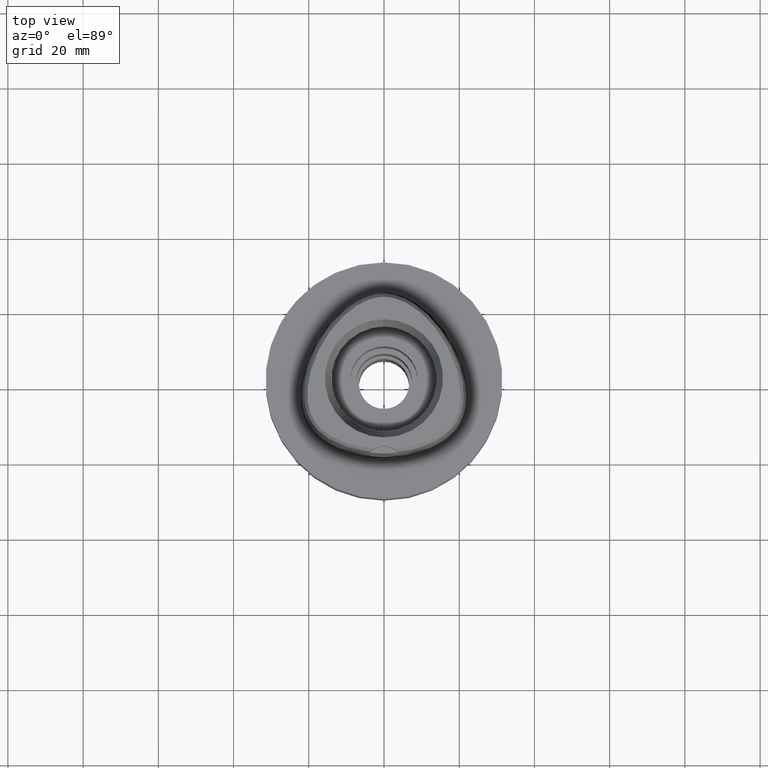
[diagram: clean part render]
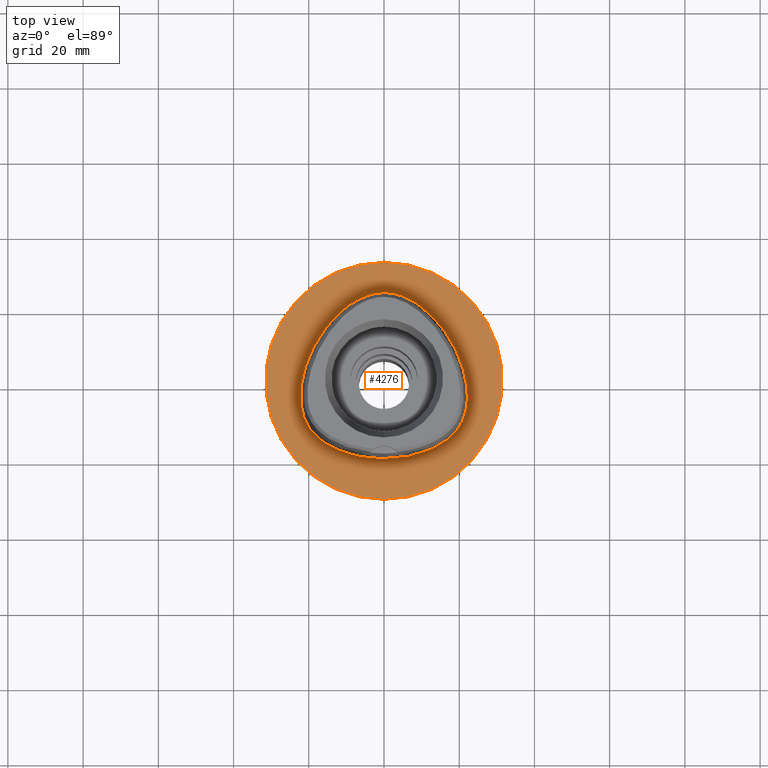
[diagram: same view with one face highlighted and labeled with its STEP entity id]
A machine part, top view. The second image highlights one B-rep face of the part: STEP entity #4276.
In plain terms, the highlighted planar face has unit normal (0, 0, -1).
Its self-contained STEP definition (entity closure, byte-faithful):
#206 = CARTESIAN_POINT ( 'NONE',  ( -14.40795638669283107, 15.64093749755124740, 1.504619045729436305E-07 ) ) ;
#239 = CARTESIAN_POINT ( 'NONE',  ( 19.64947370050258613, -12.82525393668216651, -2.066734200662292964E-06 ) ) ;
#254 = CARTESIAN_POINT ( 'NONE',  ( -6.341471018543137106, -20.29812499627781719, 1.504619045729436305E-07 ) ) ;
#279 = CARTESIAN_POINT ( 'NONE',  ( -14.67337964233091263, -17.21410155921854823, 1.504619045729436305E-07 ) ) ;
#289 = CARTESIAN_POINT ( 'NONE',  ( 0.0000000000000000000, -31.50000000000000000, 1.243449787579999883E-14 ) ) ;
#509 = DIRECTION ( 'NONE',  ( 0.0000000000000000000, -1.000000000000000000, 0.0000000000000000000 ) ) ;
#573 = CARTESIAN_POINT ( 'NONE',  ( 4.563156939745000540E-11, 23.47499999999000053, 5.514107688971999147E-14 ) ) ;
#619 = CARTESIAN_POINT ( 'NONE',  ( -21.55524825647565024, -8.996025389549746620, 1.504619045729436305E-07 ) ) ;
#626 = CARTESIAN_POINT ( 'NONE',  ( 16.95889175801266191, -15.67838871266147649, -2.066734200662292964E-06 ) ) ;
#647 = CARTESIAN_POINT ( 'NONE',  ( -10.74572890816407700, 19.17433593460787122, 1.504619045729436305E-07 ) ) ;
#672 = CARTESIAN_POINT ( 'NONE',  ( -21.97832647413867235, -0.2810937506581301926, 1.504619045729436305E-07 ) ) ;
#765 = CARTESIAN_POINT ( 'NONE',  ( 0.0000000000000000000, 1.300574900694000041E-14, 1.243449787579999883E-14 ) ) ;
#792 = CIRCLE ( 'NONE', #1452, 31.50000000000000000 ) ;
#804 = B_SPLINE_CURVE_WITH_KNOTS ( 'NONE', 3,
 ( #573, #4146, #3748, #1422, #2131, #647, #206, #2154, #2232, #672, #2564, #991, #619, #4094, #1769, #4832, #2183, #3771, #279, #4455, #254, #1841, #1377 ),
 .UNSPECIFIED., .F., .F.,
 ( 4, 1, 1, 1, 1, 1, 1, 1, 1, 1, 1, 1, 1, 1, 1, 1, 1, 1, 1, 1, 4 ),
 ( 0.0000000000000000000, 0.04166666666736999758, 0.08333333333399001175, 0.1250000000005999923, 0.1666666666673000119, 0.2500000000004999889, 0.3333333333337000215, 0.4166666666670000296, 0.5000000000002999823, 0.5416666666668999985, 0.5833333333335000148, 0.6250000000001000311, 0.6458333333333999837, 0.6666666666667999674, 0.6875000000001000311, 0.7083333333333000637, 0.7500000000000000000, 0.7916666666667000474, 0.8333333333332000326, 0.9166666666664999852, 1.000000000000000000 ),
 .UNSPECIFIED. ) ;
#811 = AXIS2_PLACEMENT_3D ( 'NONE', #3292, #4857, #1796 ) ;
#887 = FACE_BOUND ( 'NONE', #3177, .T. ) ;
#991 = CARTESIAN_POINT ( 'NONE',  ( -22.05732873948249306, -6.847636718212593898, 1.504619045729436305E-07 ) ) ;
#1043 = CARTESIAN_POINT ( 'NONE',  ( 22.24453913037089237, -4.100468749696545956, -2.066734200662292964E-06 ) ) ;
#1113 = CARTESIAN_POINT ( 'NONE',  ( 7.571159460527183249, 21.31457035722905502, -2.066734200662292964E-06 ) ) ;
#1131 = CIRCLE ( 'NONE', #3953, 31.50000000000000000 ) ;
#1294 = DIRECTION ( 'NONE',  ( 0.0000000000000000000, 0.0000000000000000000, -1.000000000000000000 ) ) ;
#1377 = CARTESIAN_POINT ( 'NONE',  ( -7.554100652393000659E-12, -20.67499999999999716, 5.806466418789999109E-14 ) ) ;
#1406 = CARTESIAN_POINT ( 'NONE',  ( 2.113823676138480767, -20.67500005166150601, -2.066734200662292964E-06 ) ) ;
#1422 = CARTESIAN_POINT ( 'NONE',  ( -5.098437015879191847, 22.52602538712171309, 1.504619045729436305E-07 ) ) ;
#1426 = CARTESIAN_POINT ( 'NONE',  ( 6.341471028391895359, -20.29812505114589172, -2.066734200662292964E-06 ) ) ;
#1452 = AXIS2_PLACEMENT_3D ( 'NONE', #765, #1294, #509 ) ;
#1480 = DIRECTION ( 'NONE',  ( 0.0000000000000000000, 0.0000000000000000000, -1.000000000000000000 ) ) ;
#1594 = CARTESIAN_POINT ( 'NONE',  ( 18.06826693023942809, 10.43171877596624064, -2.066734200662292964E-06 ) ) ;
#1714 = VERTEX_POINT ( 'NONE', #4331 ) ;
#1769 = CARTESIAN_POINT ( 'NONE',  ( -20.34961798230877150, -11.74885741998214073, 1.504619045729436305E-07 ) ) ;
#1796 = DIRECTION ( 'NONE',  ( 0.0000000000000000000, -1.000000000000000000, 0.0000000000000000000 ) ) ;
#1800 = EDGE_LOOP ( 'NONE', ( #4641, #3382 ) ) ;
#1841 = CARTESIAN_POINT ( 'NONE',  ( -2.113823672840903445, -20.67499999624136109, 1.504619045729436305E-07 ) ) ;
#2131 = CARTESIAN_POINT ( 'NONE',  ( -7.571159432445910831, 21.31457030924179108, 1.504619045729436305E-07 ) ) ;
#2154 = CARTESIAN_POINT ( 'NONE',  ( -18.06826688199668496, 10.43171874811289790, 1.504619045729436305E-07 ) ) ;
#2183 = CARTESIAN_POINT ( 'NONE',  ( -18.56841064868196511, -14.16937988021922834, 1.504619045729436305E-07 ) ) ;
#2217 = EDGE_CURVE ( 'NONE', #2860, #3243, #792, .T. ) ;
#2232 = CARTESIAN_POINT ( 'NONE',  ( -20.74942740523708196, 4.657187498717557439, 1.504619045729436305E-07 ) ) ;
#2236 = CARTESIAN_POINT ( 'NONE',  ( 14.67337966984966258, -17.21410160753009677, -2.066734200662292964E-06 ) ) ;
#2360 = CARTESIAN_POINT ( 'NONE',  ( 4.563156939745000540E-11, 23.47499999999000053, 5.514107688971999147E-14 ) ) ;
#2456 = B_SPLINE_CURVE_WITH_KNOTS ( 'NONE', 3,
 ( #4864, #1406, #1426, #2568, #2236, #626, #3730, #239, #4885, #3753, #2970, #4506, #1043, #2596, #4127, #1594, #4979, #2664, #1113, #4580, #3844, #4279, #2360 ),
 .UNSPECIFIED., .F., .F.,
 ( 4, 1, 1, 1, 1, 1, 1, 1, 1, 1, 1, 1, 1, 1, 1, 1, 1, 1, 1, 1, 4 ),
 ( 0.0000000000000000000, 0.08333333333339000559, 0.1666666666667000196, 0.2083333333333000081, 0.2500000000000000000, 0.2916666666666999919, 0.3125000000000000000, 0.3333333333333000081, 0.3541666666666000163, 0.3749999999998999689, 0.4166666666666000163, 0.4583333333332000326, 0.4999999999998999689, 0.5833333333331000015, 0.6666666666664999852, 0.7499999999998000488, 0.8333333333329999704, 0.8749999999997000177, 0.9166666666664000651, 0.9583333333329999704, 1.000000000000000000 ),
 .UNSPECIFIED. ) ;
#2564 = CARTESIAN_POINT ( 'NONE',  ( -22.24453907477161252, -4.100468750021825315, 1.504619045729436305E-07 ) ) ;
#2568 = CARTESIAN_POINT ( 'NONE',  ( 11.23259758503158245, -18.89324223631525257, -2.066734200662292964E-06 ) ) ;
#2596 = CARTESIAN_POINT ( 'NONE',  ( 21.97832652902406636, -0.2810937409606900084, -2.066734200662292964E-06 ) ) ;
#2664 = CARTESIAN_POINT ( 'NONE',  ( 10.74572894399159040, 19.17433597728068406, -2.066734200662292964E-06 ) ) ;
#2839 = VERTEX_POINT ( 'NONE', #4911 ) ;
#2860 = VERTEX_POINT ( 'NONE', #289 ) ;
#2970 = CARTESIAN_POINT ( 'NONE',  ( 21.55524830979042150, -8.996025405396677499, -2.066734200662292964E-06 ) ) ;
#3177 = EDGE_LOOP ( 'NONE', ( #3188, #4984 ) ) ;
#3188 = ORIENTED_EDGE ( 'NONE', *, *, #4339, .F. ) ;
#3243 = VERTEX_POINT ( 'NONE', #4940 ) ;
#3292 = CARTESIAN_POINT ( 'NONE',  ( 0.0000000000000000000, 1.224646799146999965E-14, 0.0000000000000000000 ) ) ;
#3382 = ORIENTED_EDGE ( 'NONE', *, *, #2217, .F. ) ;
#3696 = PLANE ( 'NONE',  #811 ) ;
#3702 = DIRECTION ( 'NONE',  ( 0.0000000000000000000, 1.000000000000000000, 0.0000000000000000000 ) ) ;
#3730 = CARTESIAN_POINT ( 'NONE',  ( 18.56841068905494652, -14.16937991845690448, -2.066734200662292964E-06 ) ) ;
#3748 = CARTESIAN_POINT ( 'NONE',  ( -2.564517726183881408, 23.29328124629300234, 1.504619045729436305E-07 ) ) ;
#3753 = CARTESIAN_POINT ( 'NONE',  ( 20.93173256939925153, -10.60431642729400714, -2.066734200662292964E-06 ) ) ;
#3771 = CARTESIAN_POINT ( 'NONE',  ( -16.95889172360037023, -15.67838866890467564, 1.504619045729436305E-07 ) ) ;
#3837 = EDGE_CURVE ( 'NONE', #3243, #2860, #1131, .T. ) ;
#3844 = CARTESIAN_POINT ( 'NONE',  ( 2.564517737576382572, 23.29328130087780835, -2.066734200662292964E-06 ) ) ;
#3898 = EDGE_CURVE ( 'NONE', #2839, #1714, #2456, .T. ) ;
#3953 = AXIS2_PLACEMENT_3D ( 'NONE', #4935, #1480, #3702 ) ;
#4094 = CARTESIAN_POINT ( 'NONE',  ( -20.93173251867508711, -10.60431640472661208, 1.504619045729436305E-07 ) ) ;
#4127 = CARTESIAN_POINT ( 'NONE',  ( 20.74942745768056795, 4.657187517616106831, -2.066734200662292964E-06 ) ) ;
#4146 = CARTESIAN_POINT ( 'NONE',  ( -0.8548392420371653255, 23.47499999624032085, 1.504619045729436305E-07 ) ) ;
#4276 = ADVANCED_FACE ( 'NONE', ( #4354, #887 ), #3696, .F. ) ;
#4279 = CARTESIAN_POINT ( 'NONE',  ( 0.8548392459695188794, 23.47500005167019665, -2.066734200662292964E-06 ) ) ;
#4331 = CARTESIAN_POINT ( 'NONE',  ( 4.563156939745000540E-11, 23.47499999999000053, 5.514107688971999147E-14 ) ) ;
#4339 = EDGE_CURVE ( 'NONE', #1714, #2839, #804, .T. ) ;
#4354 = FACE_OUTER_BOUND ( 'NONE', #1800, .T. ) ;
#4455 = CARTESIAN_POINT ( 'NONE',  ( -11.23259756598307746, -18.89324218395305266, 1.504619045729436305E-07 ) ) ;
#4506 = CARTESIAN_POINT ( 'NONE',  ( 22.05732879458533091, -6.847636726131219653, -2.066734200662292964E-06 ) ) ;
#4580 = CARTESIAN_POINT ( 'NONE',  ( 5.098437036568777003, 22.52602543879534025, -2.066734200662292964E-06 ) ) ;
#4641 = ORIENTED_EDGE ( 'NONE', *, *, #3837, .F. ) ;
#4832 = CARTESIAN_POINT ( 'NONE',  ( -19.64947365559536507, -12.82525390403092125, 1.504619045729436305E-07 ) ) ;
#4857 = DIRECTION ( 'NONE',  ( 0.0000000000000000000, 0.0000000000000000000, -1.000000000000000000 ) ) ;
#4864 = CARTESIAN_POINT ( 'NONE',  ( -7.554100652393000659E-12, -20.67499999999999716, 5.806466418789999109E-14 ) ) ;
#4885 = CARTESIAN_POINT ( 'NONE',  ( 20.34961803040015482, -11.74885744774798724, -2.066734200662292964E-06 ) ) ;
#4911 = CARTESIAN_POINT ( 'NONE',  ( -7.554100652393000659E-12, -20.67499999999999716, 5.806466418789999109E-14 ) ) ;
#4935 = CARTESIAN_POINT ( 'NONE',  ( 0.0000000000000000000, 1.300574900694000041E-14, 1.243449787579999883E-14 ) ) ;
#4940 = CARTESIAN_POINT ( 'NONE',  ( 0.0000000000000000000, 31.50000000000000000, 1.243449787579999883E-14 ) ) ;
#4979 = CARTESIAN_POINT ( 'NONE',  ( 14.40795642928249976, 15.64093753352469385, -2.066734200662292964E-06 ) ) ;
#4984 = ORIENTED_EDGE ( 'NONE', *, *, #3898, .F. ) ;